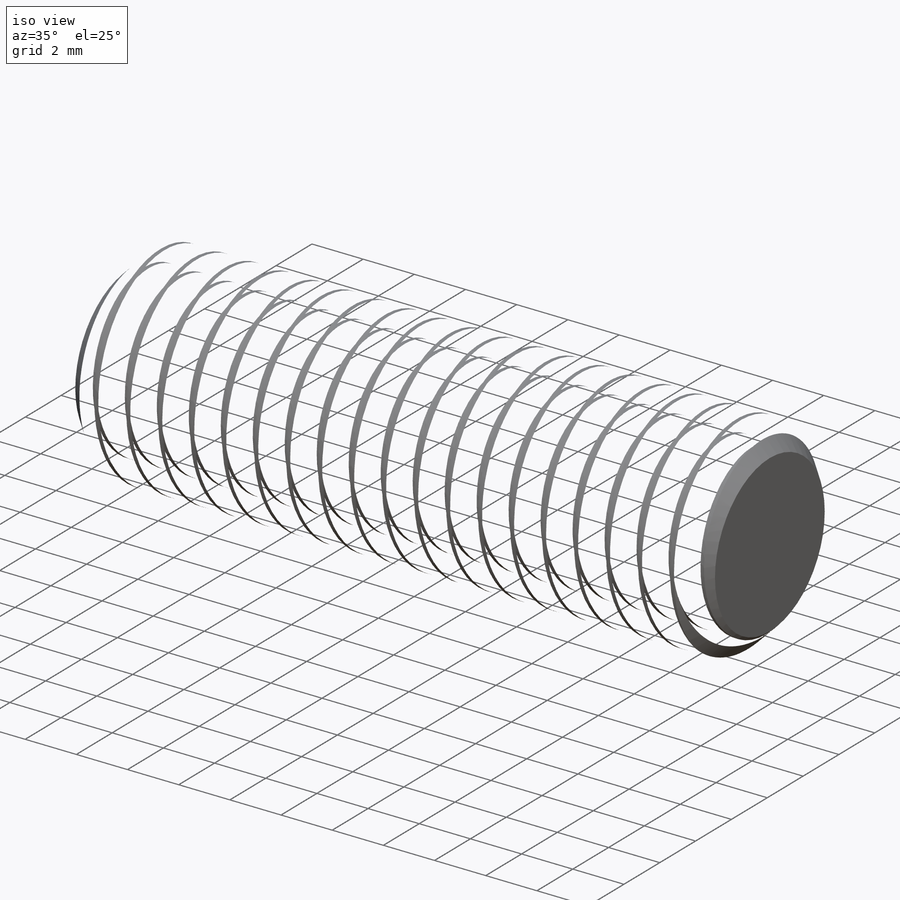
[diagram: iso view]
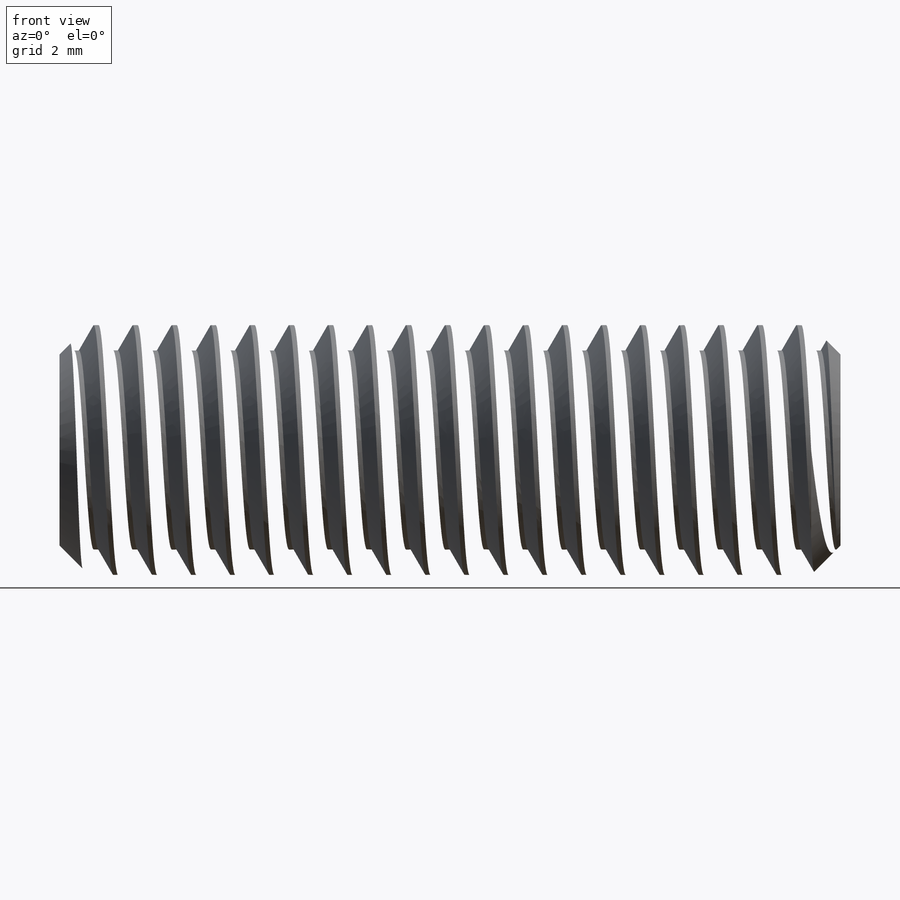
[diagram: front view]
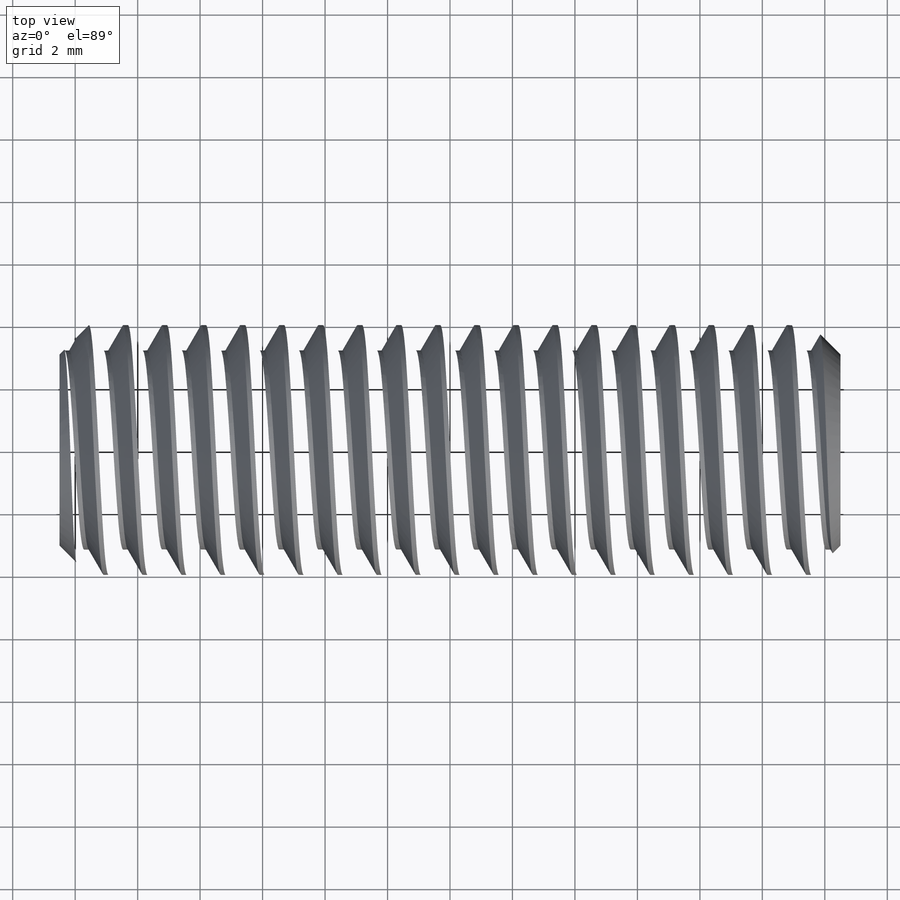
[diagram: top view]
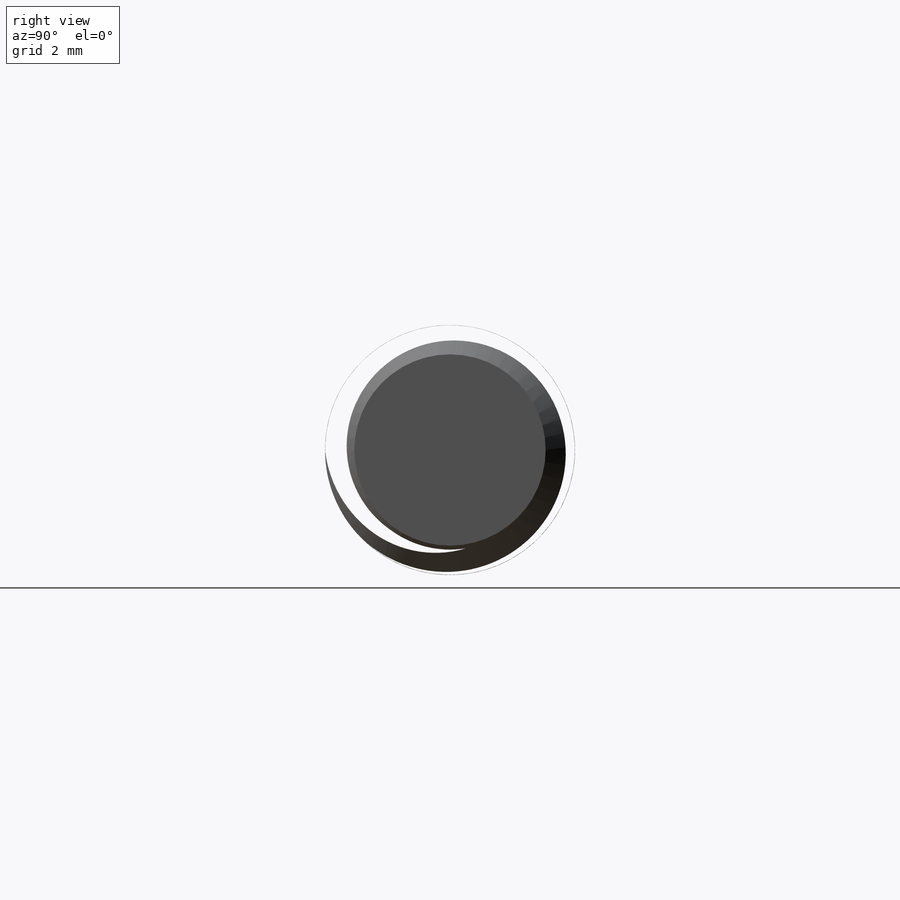
[diagram: right view]
SOLIDWORKS PART (.sldprt)
format: sldprt  version: not decoded by parser v0  size: 1,011,712 bytes
history: native  units: mm
features: sketch x4, material x1, extrude x1, helix x1, chamfer x1, sweep x1 (+15 scaffold rows collapsed)
feature tree (24):
  scaffold x15  (default folders/planes/origin — collapsed)
  material  "Material <not specified>"
  sketch  "Sketch1"  dims[Thread Diameter=8.0mm Length=25.0mm D1=4.375mm]
  sketch  "Sketch2"
  extrude  "Boss-Extrude1"  [1 undecoded]
  sketch  "Sketch3"  dims[D1=0.0mm]
  helix  "Helix/Spiral1"  Pitch=26.25mm
  chamfer  "Chamfer1"  Distance=0.9375mm Angle=45deg
  sketch  "Sketch4"  dims[D1=1.25mm D2=~0.15625mm]
  sweep  "Cut-Sweep3"
decode coverage: 5 of 8 modeling features carry decoded parameters
note: ~ marks probable driven/reference dimensions
note: 1 parameter value undecoded
note: suppression state not decoded; provenance and decode notes live in map.json
